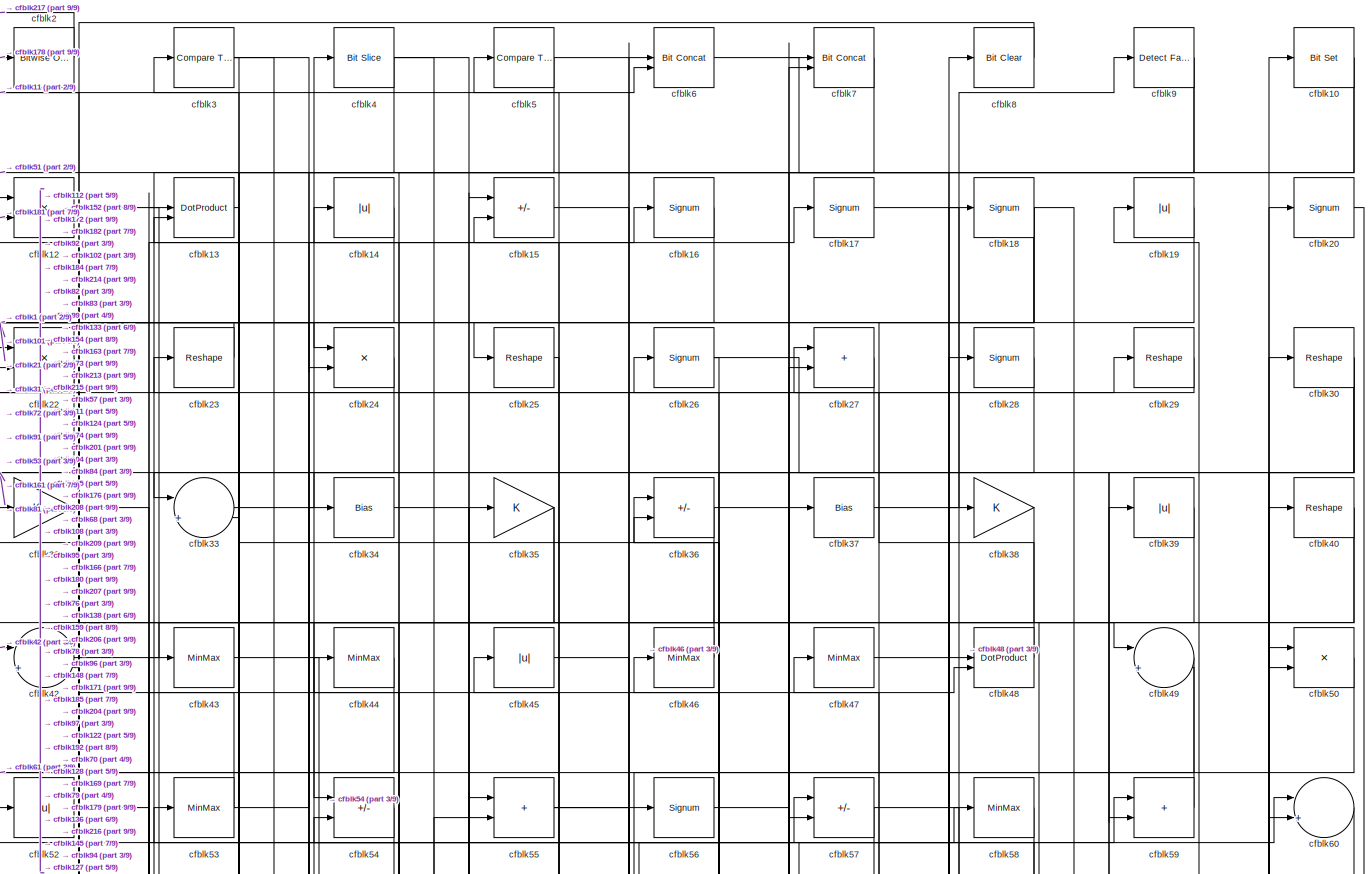
[diagram: root canvas - part 1/9, full width, top band]
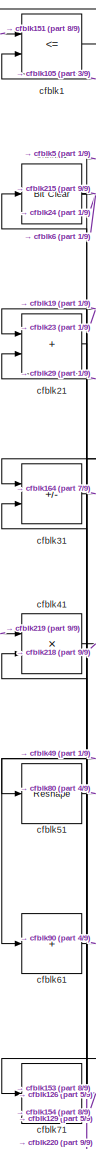
[diagram: root canvas - part 2/9, top left region]
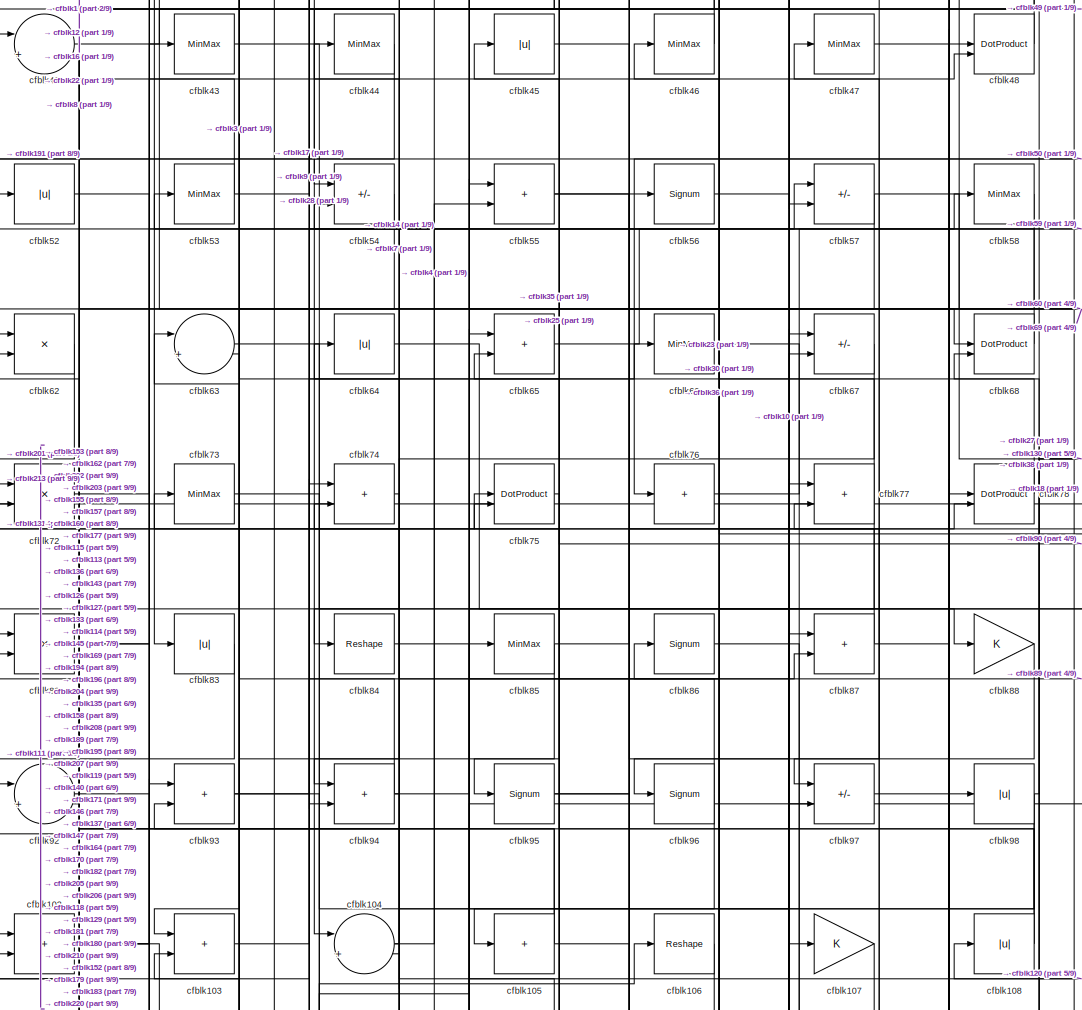
[diagram: root canvas - part 3/9, central region]
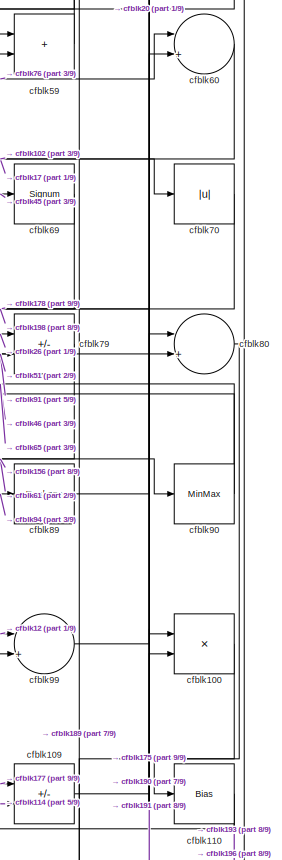
[diagram: root canvas - part 4/9, middle right region]
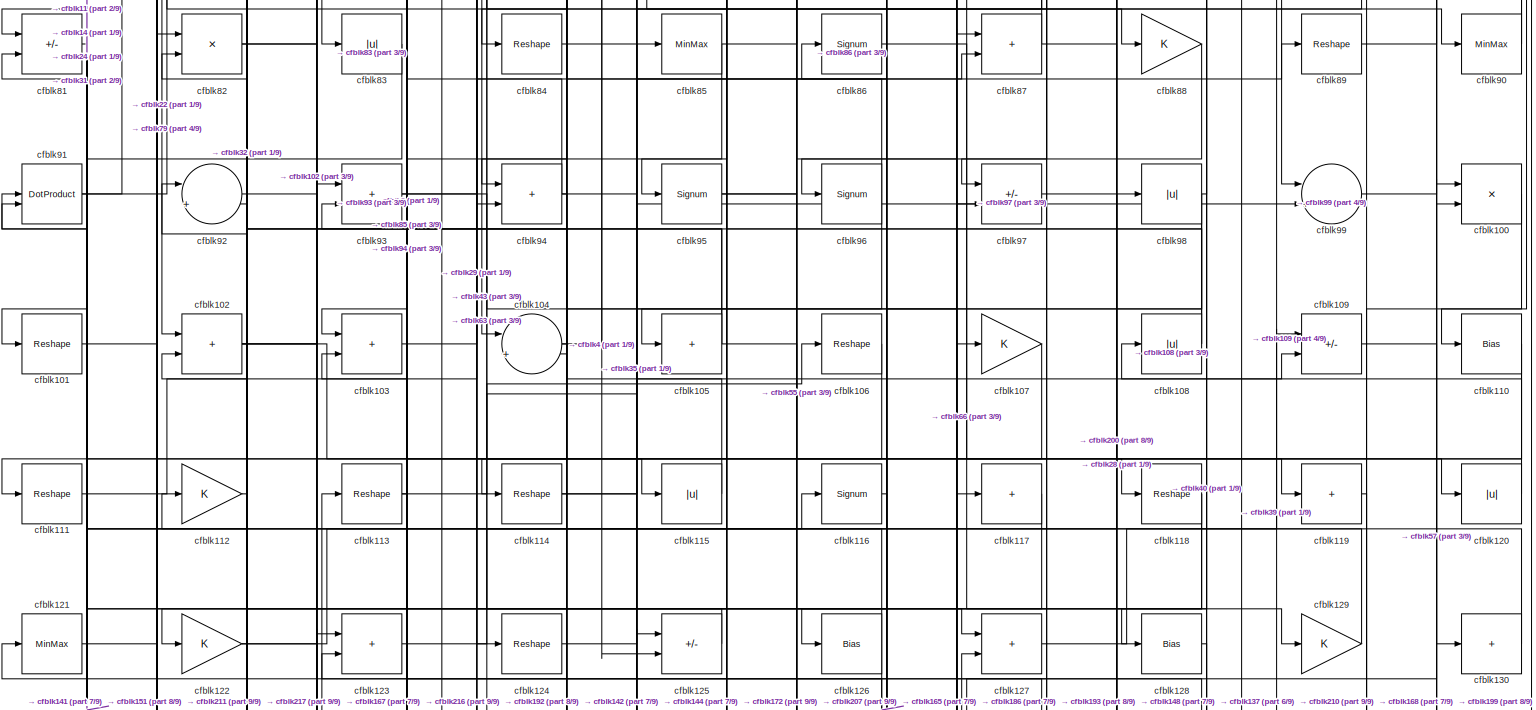
[diagram: root canvas - part 5/9, full width, middle band]
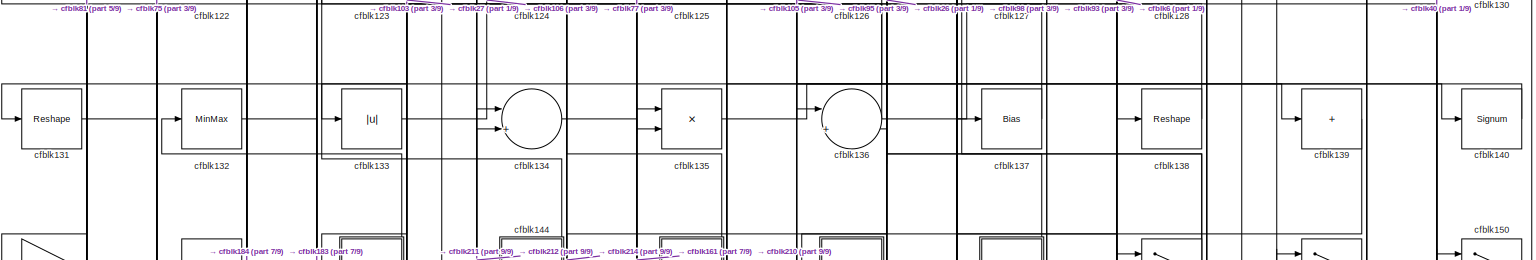
[diagram: root canvas - part 6/9, full width, middle band]
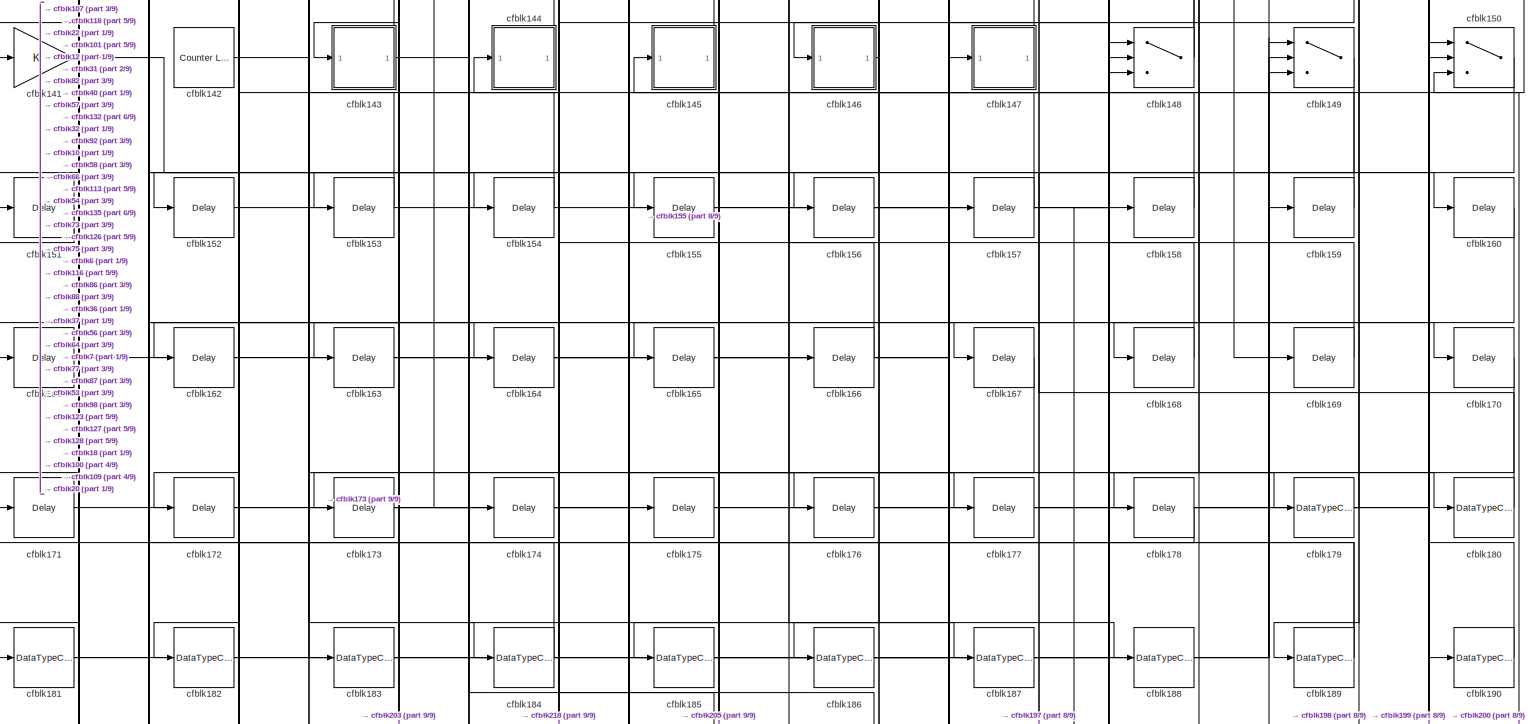
[diagram: root canvas - part 7/9, full width, bottom band]
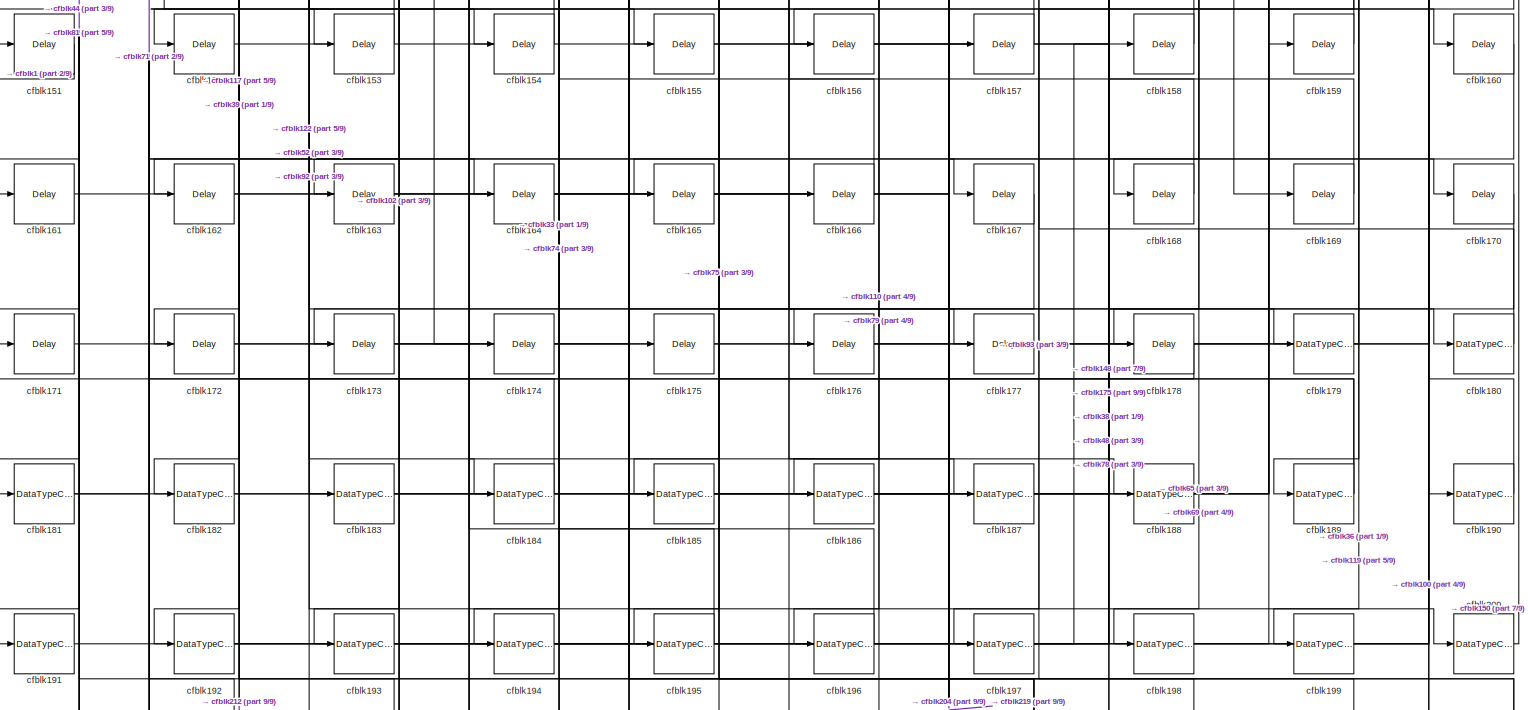
[diagram: root canvas - part 8/9, full width, bottom band]
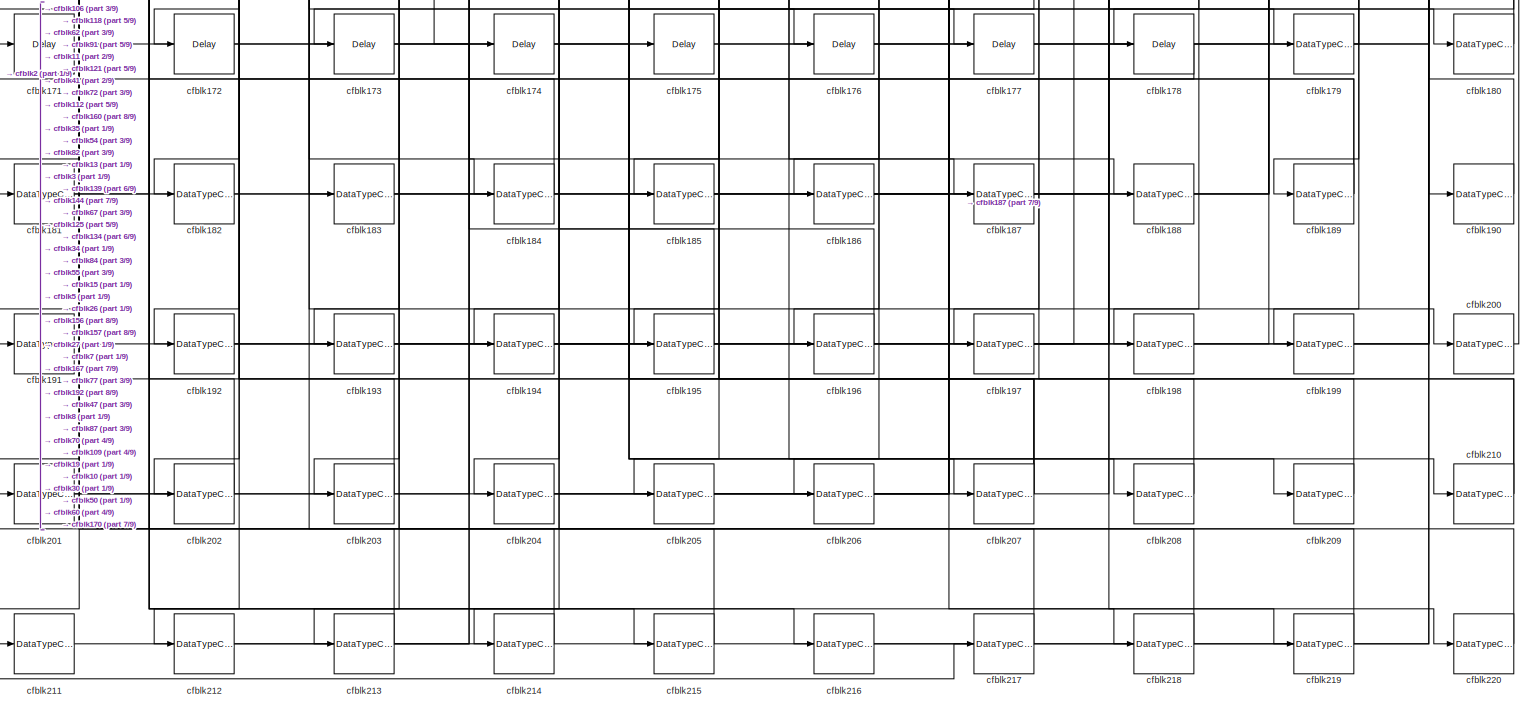
[diagram: root canvas - part 9/9, full width, bottom band]
MODEL slx_a9faa7d0a470
KIND model
CONFIG AbsTol = auto
CONFIG EnableMultiTasking = off
CONFIG FixedStep = auto
CONFIG MaxStep = auto
CONFIG MinStep = auto
CONFIG RelTol = 1e-3
CONFIG SampleTimeConstraint = Unconstrained
CONFIG SolverName = VariableStepAuto
CONFIG StartTime = 0.0
CONFIG StopTime = 10.0
BLOCK [RelationalOperator] cfblk1
  InputSameDT = off
  Operator = <=
  OutDataTypeStr = boolean
BLOCK [Reference] cfblk10  REF=simulink/Logic and Bit
Operations/Bit Set
  LibrarySourceBlock = hdlsllib/Logic and Bit\nOperations/Bit Set
  SourceBlock = simulink/Logic and Bit\nOperations/Bit Set
  SourceType = Bit Set
BLOCK [Product] cfblk100
  Inputs = */
  RndMeth = Zero
  SaturateOnIntegerOverflow = on
BLOCK [Reshape] cfblk101
BLOCK [Sum] cfblk102
  IconShape = rectangular
BLOCK [Sum] cfblk103
  IconShape = rectangular
BLOCK [Sum] cfblk104
  Inputs = |++
BLOCK [Sum] cfblk105
  IconShape = rectangular
  Inputs = +
BLOCK [Reshape] cfblk106
BLOCK [Gain] cfblk107
BLOCK [Abs] cfblk108
  SaturateOnIntegerOverflow = off
BLOCK [Sum] cfblk109
  IconShape = rectangular
  Inputs = +-
BLOCK [Reference] cfblk11  REF=simulink/Logic and Bit
Operations/Bit Clear
  LibrarySourceBlock = hdlsllib/Logic and Bit\nOperations/Bit Clear
  SourceBlock = simulink/Logic and Bit\nOperations/Bit Clear
  SourceType = Bit Clear
BLOCK [Bias] cfblk110
  Bias = 0.0
  SaturateOnIntegerOverflow = off
BLOCK [Reshape] cfblk111
BLOCK [Gain] cfblk112
BLOCK [Reshape] cfblk113
BLOCK [Reshape] cfblk114
BLOCK [Abs] cfblk115
  SaturateOnIntegerOverflow = off
BLOCK [Signum] cfblk116
BLOCK [Sum] cfblk117
  IconShape = rectangular
  Inputs = +
BLOCK [Reshape] cfblk118
BLOCK [Sum] cfblk119
  IconShape = rectangular
  Inputs = +
BLOCK [Product] cfblk12
  Inputs = */
  RndMeth = Zero
  SaturateOnIntegerOverflow = on
BLOCK [Abs] cfblk120
  SaturateOnIntegerOverflow = off
BLOCK [MinMax] cfblk121
BLOCK [Gain] cfblk122
BLOCK [Sum] cfblk123
  IconShape = rectangular
BLOCK [Reshape] cfblk124
BLOCK [Sum] cfblk125
  IconShape = rectangular
  Inputs = +-
BLOCK [Bias] cfblk126
  Bias = 0.0
  SaturateOnIntegerOverflow = off
BLOCK [Sum] cfblk127
  IconShape = rectangular
BLOCK [Bias] cfblk128
  Bias = 0.0
  SaturateOnIntegerOverflow = off
BLOCK [Gain] cfblk129
BLOCK [DotProduct] cfblk13
  OutDataTypeStr = Inherit: Inherit via internal rule
BLOCK [Sum] cfblk130
  IconShape = rectangular
  Inputs = +
BLOCK [Reshape] cfblk131
BLOCK [MinMax] cfblk132
BLOCK [Abs] cfblk133
  SaturateOnIntegerOverflow = off
BLOCK [Sum] cfblk134
  Inputs = |++
BLOCK [Product] cfblk135
  Inputs = */
  RndMeth = Zero
  SaturateOnIntegerOverflow = on
BLOCK [Sum] cfblk136
  Inputs = |++
BLOCK [Bias] cfblk137
  Bias = 0.0
  SaturateOnIntegerOverflow = off
BLOCK [Reshape] cfblk138
BLOCK [Sum] cfblk139
  IconShape = rectangular
  Inputs = +
BLOCK [Abs] cfblk14
  SaturateOnIntegerOverflow = off
BLOCK [Signum] cfblk140
BLOCK [Gain] cfblk141
BLOCK [Reference] cfblk142  REF=hdlsllib/Sources/Counter
Limited
  SourceBlock = hdlsllib/Sources/Counter\nLimited
  SourceType = Counter Limited
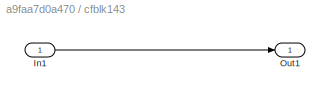
BLOCK [SubSystem] cfblk143
  LibrarySourceBlock = hdlsllib/Ports &\nSubsystems/Subsystem
BLOCK [Inport] cfblk143/In1
BLOCK [Outport] cfblk143/Out1
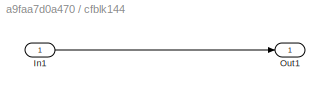
BLOCK [SubSystem] cfblk144
  LibrarySourceBlock = hdlsllib/Ports &\nSubsystems/Subsystem
BLOCK [Inport] cfblk144/In1
BLOCK [Outport] cfblk144/Out1
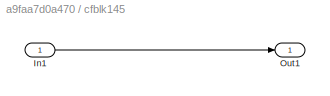
BLOCK [SubSystem] cfblk145
  LibrarySourceBlock = hdlsllib/Ports &\nSubsystems/Subsystem
BLOCK [Inport] cfblk145/In1
BLOCK [Outport] cfblk145/Out1
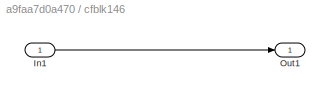
BLOCK [SubSystem] cfblk146
  LibrarySourceBlock = hdlsllib/Ports &\nSubsystems/Subsystem
BLOCK [Inport] cfblk146/In1
BLOCK [Outport] cfblk146/Out1
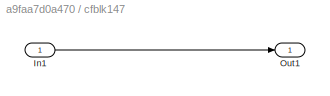
BLOCK [SubSystem] cfblk147
  LibrarySourceBlock = hdlsllib/Ports &\nSubsystems/Subsystem
BLOCK [Inport] cfblk147/In1
BLOCK [Outport] cfblk147/Out1
BLOCK [Switch] cfblk148
  InputSameDT = off
  SaturateOnIntegerOverflow = off
BLOCK [Switch] cfblk149
  InputSameDT = off
  SaturateOnIntegerOverflow = off
BLOCK [Sum] cfblk15
  IconShape = rectangular
  Inputs = +-
BLOCK [Switch] cfblk150
  InputSameDT = off
  SaturateOnIntegerOverflow = off
BLOCK [Delay] cfblk151
  InputPortMap = u0
  SampleTime = 1
BLOCK [Delay] cfblk152
  InputPortMap = u0
  SampleTime = 1
BLOCK [Delay] cfblk153
  InputPortMap = u0
  SampleTime = 1
BLOCK [Delay] cfblk154
  InputPortMap = u0
  SampleTime = 1
BLOCK [Delay] cfblk155
  InputPortMap = u0
  SampleTime = 1
BLOCK [Delay] cfblk156
  InputPortMap = u0
  SampleTime = 1
BLOCK [Delay] cfblk157
  InputPortMap = u0
  SampleTime = 1
BLOCK [Delay] cfblk158
  InputPortMap = u0
  SampleTime = 1
BLOCK [Delay] cfblk159
  InputPortMap = u0
  SampleTime = 1
BLOCK [Signum] cfblk16
BLOCK [Delay] cfblk160
  InputPortMap = u0
  SampleTime = 1
BLOCK [Delay] cfblk161
  InputPortMap = u0
  SampleTime = 1
BLOCK [Delay] cfblk162
  InputPortMap = u0
  SampleTime = 1
BLOCK [Delay] cfblk163
  InputPortMap = u0
  SampleTime = 1
BLOCK [Delay] cfblk164
  InputPortMap = u0
  SampleTime = 1
BLOCK [Delay] cfblk165
  InputPortMap = u0
  SampleTime = 1
BLOCK [Delay] cfblk166
  InputPortMap = u0
  SampleTime = 1
BLOCK [Delay] cfblk167
  InputPortMap = u0
  SampleTime = 1
BLOCK [Delay] cfblk168
  InputPortMap = u0
  SampleTime = 1
BLOCK [Delay] cfblk169
  InputPortMap = u0
  SampleTime = 1
BLOCK [Signum] cfblk17
BLOCK [Delay] cfblk170
  InputPortMap = u0
  SampleTime = 1
BLOCK [Delay] cfblk171
  InputPortMap = u0
  SampleTime = 1
BLOCK [Delay] cfblk172
  InputPortMap = u0
  SampleTime = 1
BLOCK [Delay] cfblk173
  InputPortMap = u0
  SampleTime = 1
BLOCK [Delay] cfblk174
  InputPortMap = u0
  SampleTime = 1
BLOCK [Delay] cfblk175
  InputPortMap = u0
  SampleTime = 1
BLOCK [Delay] cfblk176
  InputPortMap = u0
  SampleTime = 1
BLOCK [Delay] cfblk177
  InputPortMap = u0
  SampleTime = 1
BLOCK [Delay] cfblk178
  InputPortMap = u0
  SampleTime = 1
BLOCK [DataTypeConversion] cfblk179
  OutDataTypeStr = uint8
  RndMeth = Floor
  SaturateOnIntegerOverflow = off
BLOCK [Signum] cfblk18
BLOCK [DataTypeConversion] cfblk180
  OutDataTypeStr = uint8
  RndMeth = Floor
  SaturateOnIntegerOverflow = off
BLOCK [DataTypeConversion] cfblk181
  RndMeth = Floor
  SaturateOnIntegerOverflow = off
BLOCK [DataTypeConversion] cfblk182
  OutDataTypeStr = uint8
  RndMeth = Floor
  SaturateOnIntegerOverflow = off
BLOCK [DataTypeConversion] cfblk183
  OutDataTypeStr = uint8
  RndMeth = Floor
  SaturateOnIntegerOverflow = off
BLOCK [DataTypeConversion] cfblk184
  OutDataTypeStr = uint8
  RndMeth = Floor
  SaturateOnIntegerOverflow = off
BLOCK [DataTypeConversion] cfblk185
  OutDataTypeStr = uint8
  RndMeth = Floor
  SaturateOnIntegerOverflow = off
BLOCK [DataTypeConversion] cfblk186
  OutDataTypeStr = uint8
  RndMeth = Floor
  SaturateOnIntegerOverflow = off
BLOCK [DataTypeConversion] cfblk187
  OutDataTypeStr = uint8
  RndMeth = Floor
  SaturateOnIntegerOverflow = off
BLOCK [DataTypeConversion] cfblk188
  OutDataTypeStr = uint8
  RndMeth = Floor
  SaturateOnIntegerOverflow = off
BLOCK [DataTypeConversion] cfblk189
  RndMeth = Floor
  SaturateOnIntegerOverflow = off
BLOCK [Abs] cfblk19
  SaturateOnIntegerOverflow = off
BLOCK [DataTypeConversion] cfblk190
  OutDataTypeStr = uint8
  RndMeth = Floor
  SaturateOnIntegerOverflow = off
BLOCK [DataTypeConversion] cfblk191
  OutDataTypeStr = uint8
  RndMeth = Floor
  SaturateOnIntegerOverflow = off
BLOCK [DataTypeConversion] cfblk192
  RndMeth = Floor
  SaturateOnIntegerOverflow = off
BLOCK [DataTypeConversion] cfblk193
  OutDataTypeStr = uint8
  RndMeth = Floor
  SaturateOnIntegerOverflow = off
BLOCK [DataTypeConversion] cfblk194
  OutDataTypeStr = uint8
  RndMeth = Floor
  SaturateOnIntegerOverflow = off
BLOCK [DataTypeConversion] cfblk195
  OutDataTypeStr = uint8
  RndMeth = Floor
  SaturateOnIntegerOverflow = off
BLOCK [DataTypeConversion] cfblk196
  OutDataTypeStr = uint8
  RndMeth = Floor
  SaturateOnIntegerOverflow = off
BLOCK [DataTypeConversion] cfblk197
  RndMeth = Floor
  SaturateOnIntegerOverflow = off
BLOCK [DataTypeConversion] cfblk198
  OutDataTypeStr = uint8
  RndMeth = Floor
  SaturateOnIntegerOverflow = off
BLOCK [DataTypeConversion] cfblk199
  OutDataTypeStr = uint8
  RndMeth = Floor
  SaturateOnIntegerOverflow = off
BLOCK [Reference] cfblk2  REF=simulink/Logic and Bit
Operations/Bitwise
Operator
  LibrarySourceBlock = hdlsllib/Logic and Bit\nOperations/Bitwise\nOperator
  SourceBlock = simulink/Logic and Bit\nOperations/Bitwise\nOperator
  SourceType = Bitwise Operator
BLOCK [Signum] cfblk20
BLOCK [DataTypeConversion] cfblk200
  OutDataTypeStr = uint8
  RndMeth = Floor
  SaturateOnIntegerOverflow = off
BLOCK [DataTypeConversion] cfblk201
  RndMeth = Floor
  SaturateOnIntegerOverflow = off
BLOCK [DataTypeConversion] cfblk202
  OutDataTypeStr = uint8
  RndMeth = Floor
  SaturateOnIntegerOverflow = off
BLOCK [DataTypeConversion] cfblk203
  OutDataTypeStr = uint8
  RndMeth = Floor
  SaturateOnIntegerOverflow = off
BLOCK [DataTypeConversion] cfblk204
  RndMeth = Floor
  SaturateOnIntegerOverflow = off
BLOCK [DataTypeConversion] cfblk205
  OutDataTypeStr = uint8
  RndMeth = Floor
  SaturateOnIntegerOverflow = off
BLOCK [DataTypeConversion] cfblk206
  OutDataTypeStr = uint8
  RndMeth = Floor
  SaturateOnIntegerOverflow = off
BLOCK [DataTypeConversion] cfblk207
  RndMeth = Floor
  SaturateOnIntegerOverflow = off
BLOCK [DataTypeConversion] cfblk208
  OutDataTypeStr = uint8
  RndMeth = Floor
  SaturateOnIntegerOverflow = off
BLOCK [DataTypeConversion] cfblk209
  OutDataTypeStr = uint8
  RndMeth = Floor
  SaturateOnIntegerOverflow = off
BLOCK [Sum] cfblk21
  IconShape = rectangular
BLOCK [DataTypeConversion] cfblk210
  RndMeth = Floor
  SaturateOnIntegerOverflow = off
BLOCK [DataTypeConversion] cfblk211
  OutDataTypeStr = uint8
  RndMeth = Floor
  SaturateOnIntegerOverflow = off
BLOCK [DataTypeConversion] cfblk212
  OutDataTypeStr = uint8
  RndMeth = Floor
  SaturateOnIntegerOverflow = off
BLOCK [DataTypeConversion] cfblk213
  RndMeth = Floor
  SaturateOnIntegerOverflow = off
BLOCK [DataTypeConversion] cfblk214
  OutDataTypeStr = uint8
  RndMeth = Floor
  SaturateOnIntegerOverflow = off
BLOCK [DataTypeConversion] cfblk215
  OutDataTypeStr = uint8
  RndMeth = Floor
  SaturateOnIntegerOverflow = off
BLOCK [DataTypeConversion] cfblk216
  OutDataTypeStr = uint8
  RndMeth = Floor
  SaturateOnIntegerOverflow = off
BLOCK [DataTypeConversion] cfblk217
  OutDataTypeStr = uint8
  RndMeth = Floor
  SaturateOnIntegerOverflow = off
BLOCK [DataTypeConversion] cfblk218
  OutDataTypeStr = uint8
  RndMeth = Floor
  SaturateOnIntegerOverflow = off
BLOCK [DataTypeConversion] cfblk219
  OutDataTypeStr = uint8
  RndMeth = Floor
  SaturateOnIntegerOverflow = off
BLOCK [Product] cfblk22
  Inputs = */
  RndMeth = Zero
  SaturateOnIntegerOverflow = on
BLOCK [DataTypeConversion] cfblk220
  OutDataTypeStr = uint8
  RndMeth = Floor
  SaturateOnIntegerOverflow = off
BLOCK [Reshape] cfblk23
BLOCK [Product] cfblk24
  Inputs = */
  RndMeth = Zero
  SaturateOnIntegerOverflow = on
BLOCK [Reshape] cfblk25
BLOCK [Signum] cfblk26
BLOCK [Sum] cfblk27
  IconShape = rectangular
BLOCK [Signum] cfblk28
BLOCK [Reshape] cfblk29
BLOCK [Reference] cfblk3  REF=hdlsllib/Logic and Bit
Operations/Compare
To Constant
  SourceBlock = hdlsllib/Logic and Bit\nOperations/Compare\nTo Constant
  SourceType = Compare To Constant
BLOCK [Reshape] cfblk30
BLOCK [Sum] cfblk31
  IconShape = rectangular
  Inputs = +-
BLOCK [Gain] cfblk32
BLOCK [Sum] cfblk33
  Inputs = |++
BLOCK [Bias] cfblk34
  Bias = 0.0
  SaturateOnIntegerOverflow = off
BLOCK [Gain] cfblk35
BLOCK [Sum] cfblk36
  IconShape = rectangular
  Inputs = +-
BLOCK [Bias] cfblk37
  Bias = 0.0
  SaturateOnIntegerOverflow = off
BLOCK [Gain] cfblk38
BLOCK [Abs] cfblk39
  SaturateOnIntegerOverflow = off
BLOCK [Reference] cfblk4  REF=hdlsllib/Logic and Bit
Operations/Bit Slice
  SourceBlock = hdlsllib/Logic and Bit\nOperations/Bit Slice
  SourceType = Bit Slice
BLOCK [Reshape] cfblk40
BLOCK [Product] cfblk41
  Inputs = */
  RndMeth = Zero
  SaturateOnIntegerOverflow = on
BLOCK [Sum] cfblk42
  Inputs = |++
BLOCK [MinMax] cfblk43
BLOCK [MinMax] cfblk44
BLOCK [Abs] cfblk45
  SaturateOnIntegerOverflow = off
BLOCK [MinMax] cfblk46
BLOCK [MinMax] cfblk47
BLOCK [DotProduct] cfblk48
  OutDataTypeStr = Inherit: Inherit via internal rule
BLOCK [Sum] cfblk49
  Inputs = |++
BLOCK [Reference] cfblk5  REF=hdlsllib/Logic and Bit
Operations/Compare
To Constant
  SourceBlock = hdlsllib/Logic and Bit\nOperations/Compare\nTo Constant
  SourceType = Compare To Constant
BLOCK [Product] cfblk50
  Inputs = */
  RndMeth = Zero
  SaturateOnIntegerOverflow = on
BLOCK [Reshape] cfblk51
BLOCK [Abs] cfblk52
  SaturateOnIntegerOverflow = off
BLOCK [MinMax] cfblk53
BLOCK [Sum] cfblk54
  IconShape = rectangular
  Inputs = +-
BLOCK [Sum] cfblk55
  IconShape = rectangular
BLOCK [Signum] cfblk56
BLOCK [Sum] cfblk57
  IconShape = rectangular
  Inputs = +-
BLOCK [MinMax] cfblk58
BLOCK [Sum] cfblk59
  IconShape = rectangular
BLOCK [Reference] cfblk6  REF=hdlsllib/Logic and Bit
Operations/Bit Concat
  SourceBlock = hdlsllib/Logic and Bit\nOperations/Bit Concat
  SourceType = Bit Concat
BLOCK [Sum] cfblk60
  Inputs = |++
BLOCK [Sum] cfblk61
  IconShape = rectangular
  Inputs = +
BLOCK [Product] cfblk62
  Inputs = */
  RndMeth = Zero
  SaturateOnIntegerOverflow = on
BLOCK [Sum] cfblk63
  Inputs = |++
BLOCK [Abs] cfblk64
  SaturateOnIntegerOverflow = off
BLOCK [Sum] cfblk65
  IconShape = rectangular
BLOCK [MinMax] cfblk66
BLOCK [Sum] cfblk67
  IconShape = rectangular
  Inputs = +-
BLOCK [DotProduct] cfblk68
  OutDataTypeStr = Inherit: Inherit via internal rule
BLOCK [Signum] cfblk69
BLOCK [Reference] cfblk7  REF=hdlsllib/Logic and Bit
Operations/Bit Concat
  SourceBlock = hdlsllib/Logic and Bit\nOperations/Bit Concat
  SourceType = Bit Concat
BLOCK [Abs] cfblk70
  SaturateOnIntegerOverflow = off
BLOCK [MinMax] cfblk71
BLOCK [Product] cfblk72
  Inputs = */
  RndMeth = Zero
  SaturateOnIntegerOverflow = on
BLOCK [MinMax] cfblk73
BLOCK [Sum] cfblk74
  IconShape = rectangular
BLOCK [DotProduct] cfblk75
  OutDataTypeStr = Inherit: Inherit via internal rule
BLOCK [Sum] cfblk76
  IconShape = rectangular
  Inputs = +
BLOCK [Sum] cfblk77
  IconShape = rectangular
BLOCK [DotProduct] cfblk78
  OutDataTypeStr = Inherit: Inherit via internal rule
BLOCK [Sum] cfblk79
  IconShape = rectangular
  Inputs = +-
BLOCK [Reference] cfblk8  REF=simulink/Logic and Bit
Operations/Bit Clear
  LibrarySourceBlock = hdlsllib/Logic and Bit\nOperations/Bit Clear
  SourceBlock = simulink/Logic and Bit\nOperations/Bit Clear
  SourceType = Bit Clear
BLOCK [Sum] cfblk80
  Inputs = |++
BLOCK [Sum] cfblk81
  IconShape = rectangular
  Inputs = +-
BLOCK [Product] cfblk82
  Inputs = */
  RndMeth = Zero
  SaturateOnIntegerOverflow = on
BLOCK [Abs] cfblk83
  SaturateOnIntegerOverflow = off
BLOCK [Reshape] cfblk84
BLOCK [MinMax] cfblk85
BLOCK [Signum] cfblk86
BLOCK [Sum] cfblk87
  IconShape = rectangular
BLOCK [Gain] cfblk88
BLOCK [Reshape] cfblk89
BLOCK [Reference] cfblk9  REF=hdlsllib/Logic and Bit
Operations/Detect Fall
Negative
  SourceBlock = hdlsllib/Logic and Bit\nOperations/Detect Fall\nNegative
  SourceType = Detect Fall Negative
BLOCK [MinMax] cfblk90
BLOCK [DotProduct] cfblk91
  OutDataTypeStr = Inherit: Inherit via internal rule
BLOCK [Sum] cfblk92
  Inputs = |++
BLOCK [Sum] cfblk93
  IconShape = rectangular
BLOCK [Sum] cfblk94
  IconShape = rectangular
BLOCK [Signum] cfblk95
BLOCK [Signum] cfblk96
BLOCK [Sum] cfblk97
  IconShape = rectangular
  Inputs = +-
BLOCK [Abs] cfblk98
  SaturateOnIntegerOverflow = off
BLOCK [Sum] cfblk99
  Inputs = |++
LINE cfblk100:1 -> cfblk189:1
LINE cfblk101:1 -> cfblk167:1
NET cfblk102:1 -> cfblk115:1, cfblk48:2, cfblk59:1
LINE cfblk103:1 -> cfblk57:1
NET cfblk104:1 -> cfblk14:1, cfblk55:2
NET cfblk105:1 -> cfblk136:1, cfblk1:2, cfblk82:2
LINE cfblk106:1 -> cfblk171:1
LINE cfblk107:1 -> cfblk181:1
NET cfblk108:1 -> cfblk12:1, cfblk45:1
LINE cfblk109:1 -> cfblk190:1
NET cfblk10:1 -> cfblk163:1, cfblk57:2
NET cfblk110:1 -> cfblk193:1, cfblk196:1
LINE cfblk111:1 -> cfblk29:1
LINE cfblk112:1 -> cfblk32:1
NET cfblk113:1 -> cfblk63:2, cfblk85:1
NET cfblk114:1 -> cfblk109:2, cfblk99:2
LINE cfblk115:1 -> cfblk93:2
LINE cfblk116:1 -> cfblk186:1
LINE cfblk117:1 -> cfblk192:1
NET cfblk118:1 -> cfblk141:1, cfblk211:1
LINE cfblk119:1 -> cfblk199:1
NET cfblk11:1 -> cfblk215:1, cfblk24:1, cfblk6:2
LINE cfblk120:1 -> cfblk108:1
LINE cfblk121:1 -> cfblk216:1
NET cfblk122:1 -> cfblk200:1, cfblk28:1
LINE cfblk123:1 -> cfblk116:1
LINE cfblk124:1 -> cfblk35:1
LINE cfblk125:1 -> cfblk122:1
NET cfblk126:1 -> cfblk165:1, cfblk31:2
LINE cfblk127:1 -> cfblk39:1
LINE cfblk128:1 -> cfblk168:1
LINE cfblk129:1 -> cfblk11:1
LINE cfblk12:1 -> cfblk99:1
LINE cfblk130:1 -> cfblk91:1
LINE cfblk131:1 -> cfblk75:1
LINE cfblk132:1 -> cfblk183:1
LINE cfblk133:1 -> cfblk106:1
LINE cfblk134:1 -> cfblk210:1
LINE cfblk135:1 -> cfblk139:1
NET cfblk136:1 -> cfblk103:2, cfblk40:1
LINE cfblk137:1 -> cfblk81:2
LINE cfblk138:1 -> cfblk26:1
LINE cfblk139:1 -> cfblk214:1
LINE cfblk13:1 -> cfblk213:1
LINE cfblk140:1 -> cfblk131:1
LINE cfblk141:1 -> cfblk166:1
LINE cfblk142:1 -> cfblk123:1
LINE cfblk143/In1:1 -> cfblk143/Out1:1
NET cfblk143:1 -> cfblk66:1, cfblk92:1
LINE cfblk144/In1:1 -> cfblk144/Out1:1
LINE cfblk144:1 -> cfblk113:1
LINE cfblk145/In1:1 -> cfblk145/Out1:1
LINE cfblk145:1 -> cfblk73:1
LINE cfblk146/In1:1 -> cfblk146/Out1:1
LINE cfblk146:1 -> cfblk86:1
LINE cfblk147/In1:1 -> cfblk147/Out1:1
LINE cfblk147:1 -> cfblk53:1
NET cfblk148:1 -> cfblk123:2, cfblk127:2
LINE cfblk149:1 -> cfblk185:1
LINE cfblk14:1 -> cfblk101:1
LINE cfblk150:1 -> cfblk197:1
LINE cfblk151:1 -> cfblk1:1
LINE cfblk152:1 -> cfblk78:1
LINE cfblk153:1 -> cfblk102:2
LINE cfblk154:1 -> cfblk33:2
LINE cfblk155:1 -> cfblk148:1
LINE cfblk156:1 -> cfblk219:1
LINE cfblk157:1 -> cfblk93:1
LINE cfblk158:1 -> cfblk65:1
LINE cfblk159:1 -> cfblk36:2
LINE cfblk15:1 -> cfblk207:1
LINE cfblk160:1 -> cfblk212:1
LINE cfblk161:1 -> cfblk135:1
LINE cfblk162:1 -> cfblk87:1
LINE cfblk163:1 -> cfblk7:2
LINE cfblk164:1 -> cfblk77:1
LINE cfblk165:1 -> cfblk188:1
LINE cfblk166:1 -> cfblk6:1
LINE cfblk167:1 -> cfblk205:1
LINE cfblk168:1 -> cfblk148:2
LINE cfblk169:1 -> cfblk54:2
LINE cfblk16:1 -> cfblk42:2
LINE cfblk170:1 -> cfblk203:1
LINE cfblk171:1 -> cfblk27:2
LINE cfblk172:1 -> cfblk125:1
LINE cfblk173:1 -> cfblk187:1
LINE cfblk174:1 -> cfblk209:1
LINE cfblk175:1 -> cfblk60:2
LINE cfblk176:1 -> cfblk50:1
LINE cfblk177:1 -> cfblk109:1
LINE cfblk178:1 -> cfblk2:1
LINE cfblk179:1 -> cfblk19:1
LINE cfblk17:1 -> cfblk70:1
LINE cfblk180:1 -> cfblk47:1
NET cfblk181:1 -> cfblk12:2, cfblk18:1
LINE cfblk182:1 -> cfblk107:1
LINE cfblk183:1 -> cfblk98:1
LINE cfblk184:1 -> cfblk132:1
LINE cfblk185:1 -> cfblk37:1
LINE cfblk186:1 -> cfblk149:1
LINE cfblk187:1 -> cfblk149:2
LINE cfblk188:1 -> cfblk149:3
NET cfblk189:1 -> cfblk75:2, cfblk82:1
NET cfblk18:1 -> cfblk169:1, cfblk25:1, cfblk72:2, cfblk97:1
LINE cfblk190:1 -> cfblk100:1
LINE cfblk191:1 -> cfblk100:2
NET cfblk192:1 -> cfblk175:1, cfblk38:1
LINE cfblk193:1 -> cfblk117:1
LINE cfblk194:1 -> cfblk48:1
LINE cfblk195:1 -> cfblk74:1
LINE cfblk196:1 -> cfblk74:2
NET cfblk197:1 -> cfblk158:1, cfblk159:1
LINE cfblk198:1 -> cfblk150:1
LINE cfblk199:1 -> cfblk150:2
LINE cfblk19:1 -> cfblk31:1
LINE cfblk1:1 -> cfblk24:2
LINE cfblk200:1 -> cfblk150:3
NET cfblk201:1 -> cfblk34:1, cfblk8:1
LINE cfblk202:1 -> cfblk62:1
LINE cfblk203:1 -> cfblk62:2
NET cfblk204:1 -> cfblk157:1, cfblk7:1
LINE cfblk205:1 -> cfblk67:1
LINE cfblk206:1 -> cfblk67:2
NET cfblk207:1 -> cfblk112:1, cfblk55:1, cfblk5:1
LINE cfblk208:1 -> cfblk15:1
LINE cfblk209:1 -> cfblk15:2
LINE cfblk20:1 -> cfblk145:1
NET cfblk210:1 -> cfblk77:2, cfblk91:2
LINE cfblk211:1 -> cfblk134:1
LINE cfblk212:1 -> cfblk134:2
NET cfblk213:1 -> cfblk10:1, cfblk72:1
LINE cfblk214:1 -> cfblk13:1
LINE cfblk215:1 -> cfblk13:2
LINE cfblk216:1 -> cfblk30:1
LINE cfblk217:1 -> cfblk121:1
LINE cfblk218:1 -> cfblk144:1
LINE cfblk219:1 -> cfblk41:1
LINE cfblk21:1 -> cfblk71:1
LINE cfblk220:1 -> cfblk41:2
LINE cfblk22:1 -> cfblk161:1
LINE cfblk23:1 -> cfblk21:1
LINE cfblk24:1 -> cfblk81:1
LINE cfblk25:1 -> cfblk95:1
NET cfblk26:1 -> cfblk206:1, cfblk79:1
LINE cfblk27:1 -> cfblk133:1
LINE cfblk28:1 -> cfblk54:1
LINE cfblk29:1 -> cfblk21:2
LINE cfblk2:1 -> cfblk217:1
NET cfblk30:1 -> cfblk50:2, cfblk59:2, cfblk96:1
LINE cfblk31:1 -> cfblk164:1
LINE cfblk32:1 -> cfblk184:1
LINE cfblk33:1 -> cfblk4:1
LINE cfblk34:1 -> cfblk176:1
NET cfblk35:1 -> cfblk172:1, cfblk92:2
NET cfblk36:1 -> cfblk148:3, cfblk94:1
LINE cfblk37:1 -> cfblk9:1
LINE cfblk38:1 -> cfblk104:1
LINE cfblk39:1 -> cfblk152:1
NET cfblk3:1 -> cfblk124:1, cfblk173:1, cfblk174:1
NET cfblk40:1 -> cfblk128:1, cfblk182:1
LINE cfblk41:1 -> cfblk218:1
LINE cfblk42:1 -> cfblk49:1
LINE cfblk43:1 -> cfblk126:1
LINE cfblk44:1 -> cfblk191:1
LINE cfblk45:1 -> cfblk69:1
LINE cfblk46:1 -> cfblk23:1
LINE cfblk47:1 -> cfblk179:1
LINE cfblk48:1 -> cfblk27:1
LINE cfblk49:1 -> cfblk61:1
NET cfblk4:1 -> cfblk125:2, cfblk68:1, cfblk83:1
LINE cfblk50:1 -> cfblk76:1
LINE cfblk51:1 -> cfblk80:2
LINE cfblk52:1 -> cfblk160:1
NET cfblk53:1 -> cfblk17:1, cfblk22:2
LINE cfblk54:1 -> cfblk202:1
NET cfblk55:1 -> cfblk119:1, cfblk97:2
LINE cfblk56:1 -> cfblk170:1
NET cfblk57:1 -> cfblk130:1, cfblk162:1
LINE cfblk58:1 -> cfblk143:1
LINE cfblk59:1 -> cfblk49:2
NET cfblk5:1 -> cfblk180:1, cfblk51:1
LINE cfblk60:1 -> cfblk102:1
LINE cfblk61:1 -> cfblk90:1
LINE cfblk62:1 -> cfblk201:1
LINE cfblk63:1 -> cfblk127:1
LINE cfblk64:1 -> cfblk147:1
LINE cfblk65:1 -> cfblk58:1
LINE cfblk66:1 -> cfblk129:1
LINE cfblk67:1 -> cfblk204:1
LINE cfblk68:1 -> cfblk3:1
LINE cfblk69:1 -> cfblk198:1
LINE cfblk6:1 -> cfblk138:1
LINE cfblk70:1 -> cfblk178:1
NET cfblk71:1 -> cfblk153:1, cfblk154:1
LINE cfblk72:1 -> cfblk43:1
LINE cfblk73:1 -> cfblk88:1
LINE cfblk74:1 -> cfblk194:1
LINE cfblk75:1 -> cfblk195:1
LINE cfblk76:1 -> cfblk60:1
NET cfblk77:1 -> cfblk135:2, cfblk52:1
LINE cfblk78:1 -> cfblk36:1
LINE cfblk79:1 -> cfblk156:1
LINE cfblk7:1 -> cfblk84:1
LINE cfblk80:1 -> cfblk110:1
LINE cfblk81:1 -> cfblk151:1
NET cfblk82:1 -> cfblk16:1, cfblk177:1
LINE cfblk83:1 -> cfblk111:1
LINE cfblk84:1 -> cfblk208:1
NET cfblk85:1 -> cfblk103:1, cfblk78:2
LINE cfblk86:1 -> cfblk118:1
NET cfblk87:1 -> cfblk220:1, cfblk64:1
LINE cfblk88:1 -> cfblk146:1
LINE cfblk89:1 -> cfblk80:1
LINE cfblk8:1 -> cfblk42:1
NET cfblk90:1 -> cfblk46:1, cfblk65:2
NET cfblk91:1 -> cfblk22:1, cfblk79:2
LINE cfblk92:1 -> cfblk155:1
NET cfblk93:1 -> cfblk137:1, cfblk87:2
NET cfblk94:1 -> cfblk114:1, cfblk63:1, cfblk89:1
NET cfblk95:1 -> cfblk140:1, cfblk56:1
NET cfblk96:1 -> cfblk105:1, cfblk44:1
LINE cfblk97:1 -> cfblk120:1
NET cfblk98:1 -> cfblk104:2, cfblk136:2, cfblk68:2
LINE cfblk99:1 -> cfblk20:1
NET cfblk9:1 -> cfblk33:1, cfblk94:2
note: NET lines group one-source signal fan-out (src -> all destinations, sorted); 1:1 wires keep LINE
